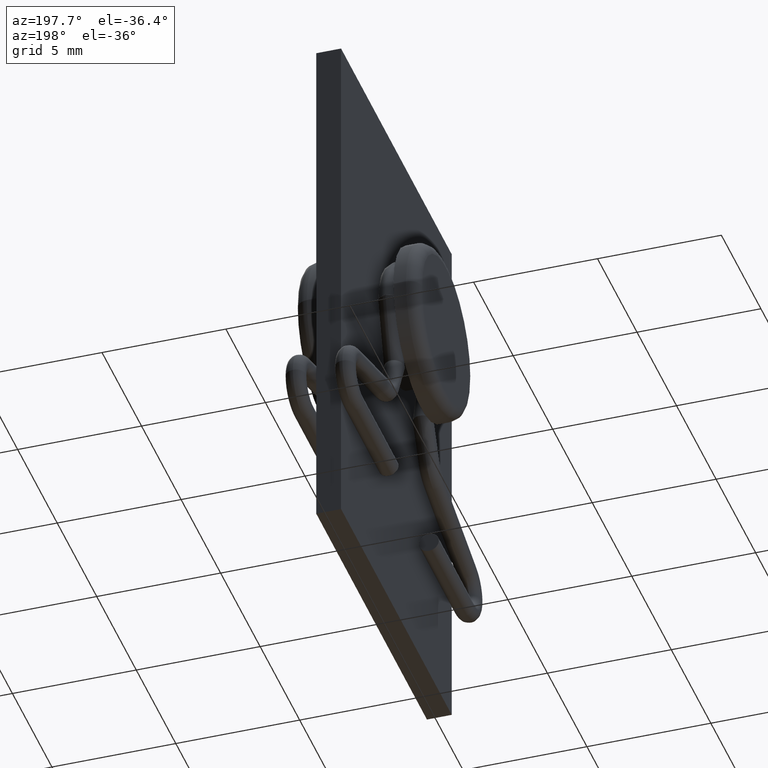
[diagram: clean part render]
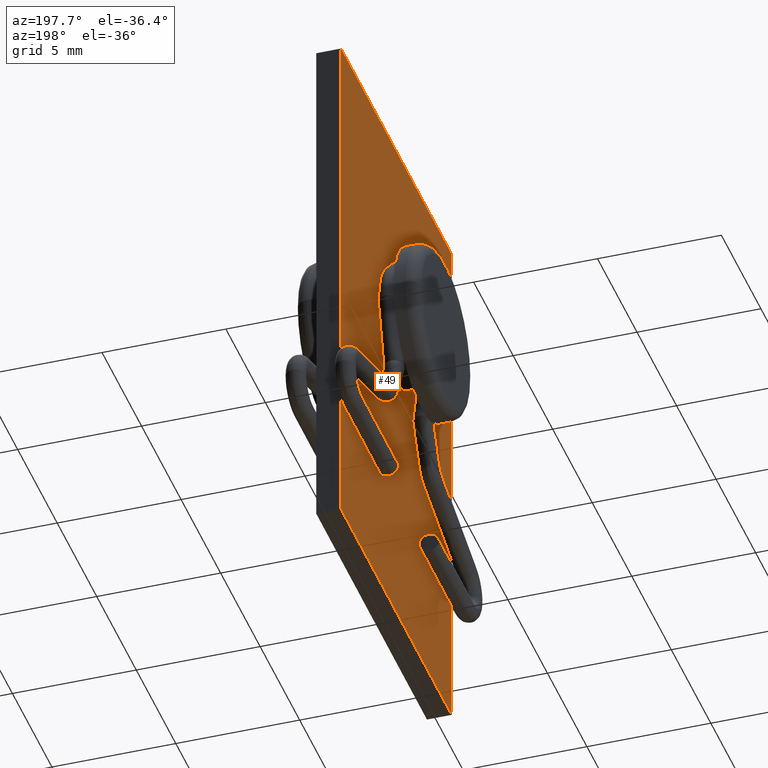
[diagram: same view with one face highlighted and labeled with its STEP entity id]
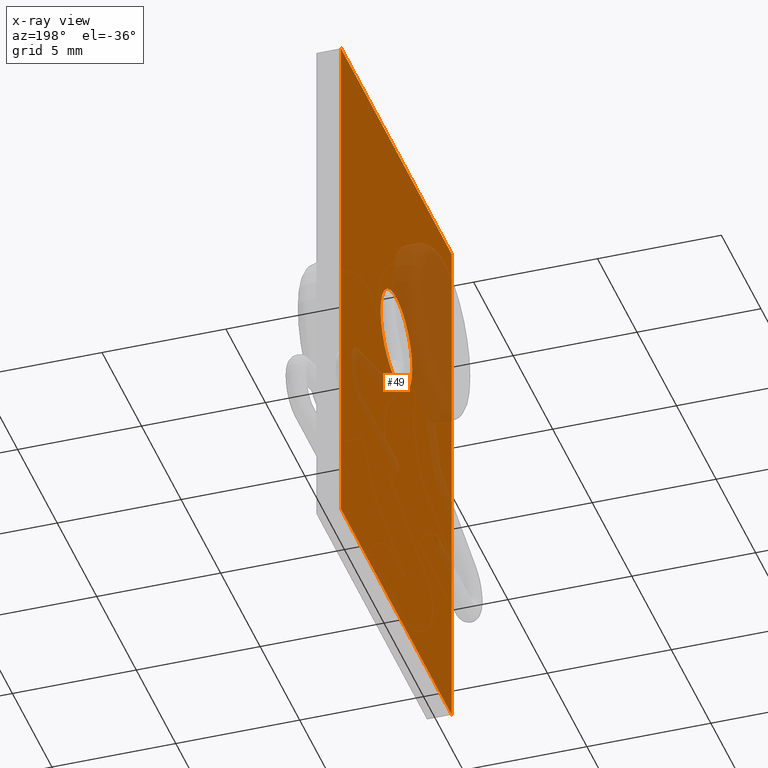
[diagram: x-ray of the same camera — body ghosted, the highlighted face saturated]
A machine part, auxiliary view. The second image highlights one B-rep face of the part: STEP entity #49.
The next image is the same camera in x-ray: the body ghosted, the highlighted face saturated — about 21% of this face is hidden behind the body in this view.
In plain terms, the highlighted planar face has unit normal (1, 0, -0).
Its self-contained STEP definition (entity closure, byte-faithful):
#49 = ADVANCED_FACE ( 'NONE', ( #2245, #118 ), #2032, .F. ) ;
#77 = CARTESIAN_POINT ( 'NONE',  ( -0.5000000000000007772, 7.000000000000000888, 22.00000000000000000 ) ) ;
#118 = FACE_OUTER_BOUND ( 'NONE', #2506, .T. ) ;
#199 = VERTEX_POINT ( 'NONE', #2815 ) ;
#245 = EDGE_LOOP ( 'NONE', ( #441, #2584 ) ) ;
#269 = CIRCLE ( 'NONE', #318, 1.999999999999999556 ) ;
#317 = DIRECTION ( 'NONE',  ( 1.000000000000000000, -3.794707603699264533E-16, -0.000000000000000000 ) ) ;
#318 = AXIS2_PLACEMENT_3D ( 'NONE', #1515, #1294, #1497 ) ;
#336 = DIRECTION ( 'NONE',  ( 3.794707603699266505E-16, 1.000000000000000000, 0.000000000000000000 ) ) ;
#392 = VERTEX_POINT ( 'NONE', #746 ) ;
#441 = ORIENTED_EDGE ( 'NONE', *, *, #1322, .T. ) ;
#503 = VERTEX_POINT ( 'NONE', #1509 ) ;
#598 = LINE ( 'NONE', #1798, #1143 ) ;
#625 = VERTEX_POINT ( 'NONE', #2900 ) ;
#693 = ORIENTED_EDGE ( 'NONE', *, *, #2069, .F. ) ;
#746 = CARTESIAN_POINT ( 'NONE',  ( -0.5000000000000006661, -1.999999999999999556, 13.00000000000000000 ) ) ;
#759 = ORIENTED_EDGE ( 'NONE', *, *, #1977, .T. ) ;
#763 = EDGE_CURVE ( 'NONE', #1403, #199, #598, .T. ) ;
#784 = AXIS2_PLACEMENT_3D ( 'NONE', #1562, #317, #336 ) ;
#793 = VERTEX_POINT ( 'NONE', #2428 ) ;
#864 = CARTESIAN_POINT ( 'NONE',  ( -0.5000000000000007772, 7.000000000000000888, 0.000000000000000000 ) ) ;
#1052 = DIRECTION ( 'NONE',  ( -1.239088197126290817E-16, 1.000000000000000000, 0.000000000000000000 ) ) ;
#1108 = CARTESIAN_POINT ( 'NONE',  ( -0.5000000000000007772, 7.000000000000000888, 22.00000000000000000 ) ) ;
#1138 = AXIS2_PLACEMENT_3D ( 'NONE', #77, #2707, #1052 ) ;
#1143 = VECTOR ( 'NONE', #2764, 1000.000000000000000 ) ;
#1269 = EDGE_CURVE ( 'NONE', #793, #392, #1906, .T. ) ;
#1294 = DIRECTION ( 'NONE',  ( 1.000000000000000000, -3.794707603699264533E-16, -0.000000000000000000 ) ) ;
#1322 = EDGE_CURVE ( 'NONE', #392, #793, #269, .T. ) ;
#1350 = CARTESIAN_POINT ( 'NONE',  ( -0.5000000000000007772, 7.000000000000000888, 22.00000000000000000 ) ) ;
#1403 = VERTEX_POINT ( 'NONE', #864 ) ;
#1435 = EDGE_CURVE ( 'NONE', #503, #199, #2845, .T. ) ;
#1497 = DIRECTION ( 'NONE',  ( 3.794707603699266505E-16, 1.000000000000000000, 0.000000000000000000 ) ) ;
#1509 = CARTESIAN_POINT ( 'NONE',  ( -0.4999999999999990563, -6.999999999999999112, 22.00000000000000000 ) ) ;
#1515 = CARTESIAN_POINT ( 'NONE',  ( -0.4999999999999998890, 6.195440985631451620E-17, 13.00000000000000000 ) ) ;
#1560 = LINE ( 'NONE', #1350, #2865 ) ;
#1562 = CARTESIAN_POINT ( 'NONE',  ( -0.4999999999999998890, 6.195440985631451620E-17, 13.00000000000000000 ) ) ;
#1576 = LINE ( 'NONE', #1108, #2105 ) ;
#1798 = CARTESIAN_POINT ( 'NONE',  ( -0.5000000000000007772, 7.000000000000000888, 0.000000000000000000 ) ) ;
#1906 = CIRCLE ( 'NONE', #784, 1.999999999999999556 ) ;
#1977 = EDGE_CURVE ( 'NONE', #625, #1403, #1560, .T. ) ;
#2032 = PLANE ( 'NONE',  #1138 ) ;
#2069 = EDGE_CURVE ( 'NONE', #625, #503, #1576, .T. ) ;
#2085 = DIRECTION ( 'NONE',  ( 1.239088197126290817E-16, -1.000000000000000000, 0.000000000000000000 ) ) ;
#2105 = VECTOR ( 'NONE', #2085, 1000.000000000000000 ) ;
#2245 = FACE_BOUND ( 'NONE', #245, .T. ) ;
#2428 = CARTESIAN_POINT ( 'NONE',  ( -0.4999999999999991673, 1.999999999999999556, 13.00000000000000000 ) ) ;
#2493 = ORIENTED_EDGE ( 'NONE', *, *, #1435, .F. ) ;
#2506 = EDGE_LOOP ( 'NONE', ( #3078, #2493, #693, #759 ) ) ;
#2584 = ORIENTED_EDGE ( 'NONE', *, *, #1269, .T. ) ;
#2595 = DIRECTION ( 'NONE',  ( -0.000000000000000000, -0.000000000000000000, -1.000000000000000000 ) ) ;
#2707 = DIRECTION ( 'NONE',  ( 1.000000000000000000, 1.239088197126290817E-16, -0.000000000000000000 ) ) ;
#2764 = DIRECTION ( 'NONE',  ( 1.239088197126290817E-16, -1.000000000000000000, 0.000000000000000000 ) ) ;
#2810 = VECTOR ( 'NONE', #2595, 1000.000000000000000 ) ;
#2815 = CARTESIAN_POINT ( 'NONE',  ( -0.4999999999999990563, -6.999999999999999112, 0.000000000000000000 ) ) ;
#2828 = DIRECTION ( 'NONE',  ( -0.000000000000000000, -0.000000000000000000, -1.000000000000000000 ) ) ;
#2845 = LINE ( 'NONE', #3035, #2810 ) ;
#2865 = VECTOR ( 'NONE', #2828, 1000.000000000000000 ) ;
#2900 = CARTESIAN_POINT ( 'NONE',  ( -0.5000000000000007772, 7.000000000000000888, 22.00000000000000000 ) ) ;
#3035 = CARTESIAN_POINT ( 'NONE',  ( -0.4999999999999990563, -6.999999999999999112, 22.00000000000000000 ) ) ;
#3078 = ORIENTED_EDGE ( 'NONE', *, *, #763, .T. ) ;